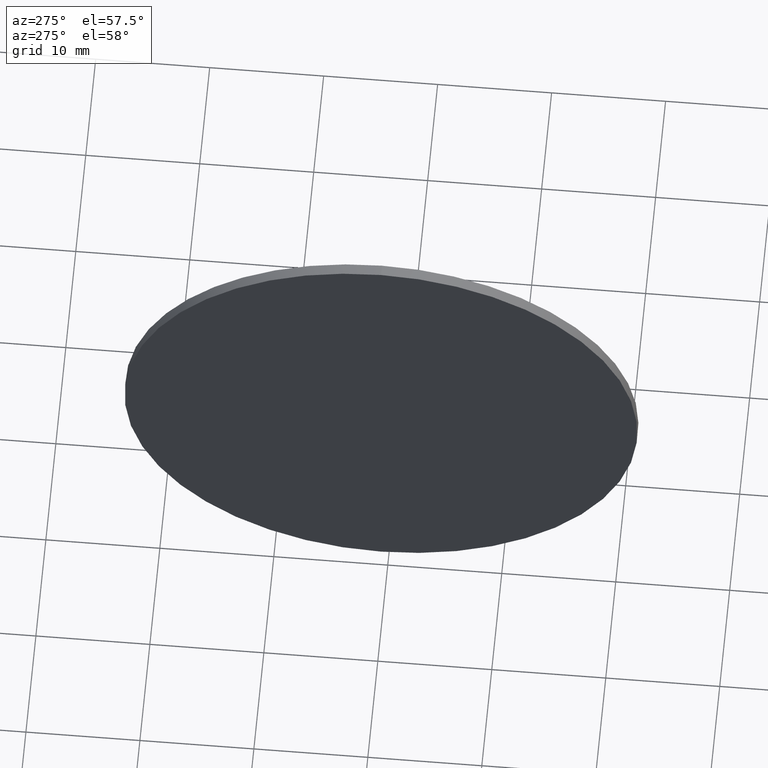
[diagram: clean part render]
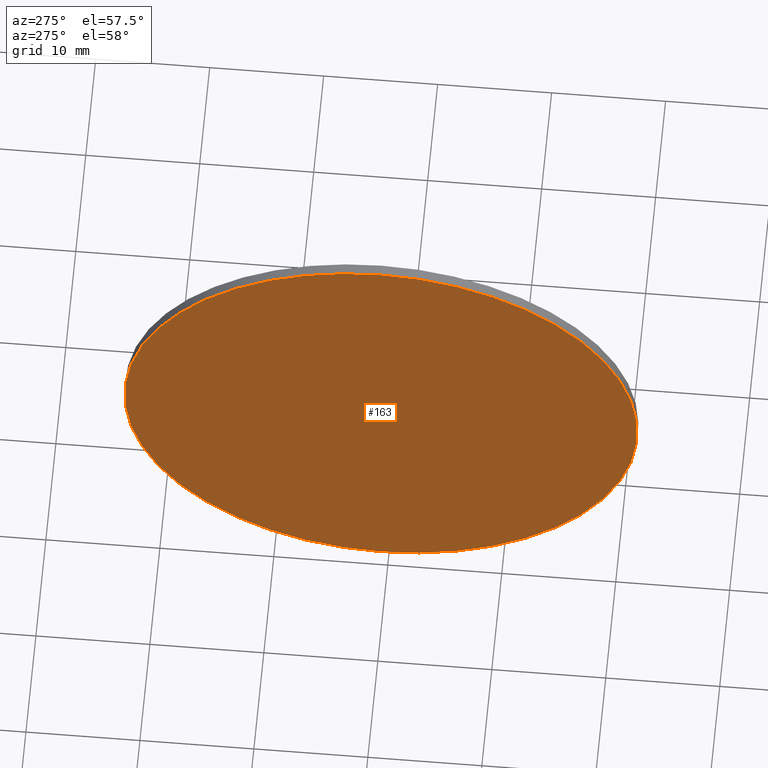
[diagram: same view with one face highlighted and labeled with its STEP entity id]
A machine part, auxiliary view. The second image highlights one B-rep face of the part: STEP entity #163.
In plain terms, the highlighted planar face has unit normal (1, 0, 0).
Its self-contained STEP definition (entity closure, byte-faithful):
#17 = CARTESIAN_POINT ( 'NONE',  ( 390.7243700136168600, 50.66319577228512100, 22.50000000000000700 ) ) ;
#35 = ORIENTED_EDGE ( 'NONE', *, *, #186, .T. ) ;
#37 = AXIS2_PLACEMENT_3D ( 'NONE', #155, #70, #42 ) ;
#40 = DIRECTION ( 'NONE',  ( 0.0000000000000000000, 0.0000000000000000000, -1.000000000000000000 ) ) ;
#42 = DIRECTION ( 'NONE',  ( 0.0000000000000000000, 0.0000000000000000000, 1.000000000000000000 ) ) ;
#45 = VERTEX_POINT ( 'NONE', #17 ) ;
#51 = DIRECTION ( 'NONE',  ( 0.0000000000000000000, 0.0000000000000000000, 1.000000000000000000 ) ) ;
#56 = AXIS2_PLACEMENT_3D ( 'NONE', #100, #166, #40 ) ;
#70 = DIRECTION ( 'NONE',  ( -1.000000000000000000, -0.0000000000000000000, -0.0000000000000000000 ) ) ;
#78 = FACE_OUTER_BOUND ( 'NONE', #130, .T. ) ;
#100 = CARTESIAN_POINT ( 'NONE',  ( 390.7243700136168600, 50.66319577228512100, 0.0000000000000000000 ) ) ;
#105 = AXIS2_PLACEMENT_3D ( 'NONE', #115, #176, #51 ) ;
#109 = EDGE_CURVE ( 'NONE', #116, #45, #162, .T. ) ;
#112 = ORIENTED_EDGE ( 'NONE', *, *, #109, .T. ) ;
#115 = CARTESIAN_POINT ( 'NONE',  ( 390.7243700136168600, 50.66319577228512100, 0.0000000000000000000 ) ) ;
#116 = VERTEX_POINT ( 'NONE', #178 ) ;
#120 = CIRCLE ( 'NONE', #37, 22.50000000000000700 ) ;
#129 = PLANE ( 'NONE',  #56 ) ;
#130 = EDGE_LOOP ( 'NONE', ( #35, #112 ) ) ;
#155 = CARTESIAN_POINT ( 'NONE',  ( 390.7243700136168600, 50.66319577228512100, 0.0000000000000000000 ) ) ;
#162 = CIRCLE ( 'NONE', #105, 22.50000000000000700 ) ;
#163 = ADVANCED_FACE ( 'NONE', ( #78 ), #129, .F. ) ;
#166 = DIRECTION ( 'NONE',  ( 1.000000000000000000, 0.0000000000000000000, 0.0000000000000000000 ) ) ;
#176 = DIRECTION ( 'NONE',  ( -1.000000000000000000, -0.0000000000000000000, -0.0000000000000000000 ) ) ;
#178 = CARTESIAN_POINT ( 'NONE',  ( 390.7243700136168600, 50.66319577228512100, -22.50000000000000700 ) ) ;
#186 = EDGE_CURVE ( 'NONE', #45, #116, #120, .T. ) ;